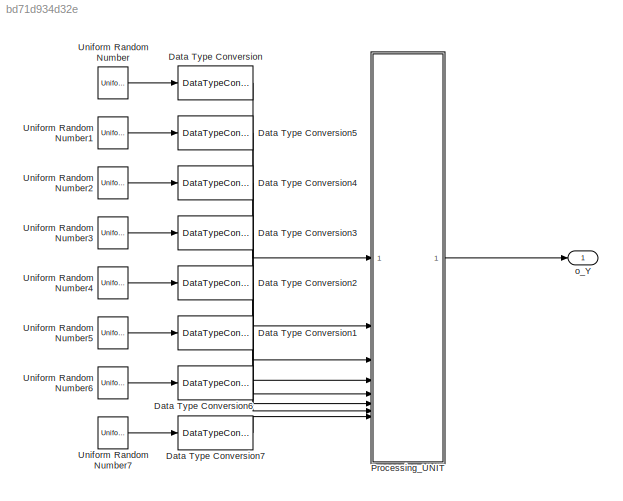
MODEL slx_bd71d934d32e
KIND model
CONFIG AbsTol = auto
CONFIG EnableMultiTasking = off
CONFIG FixedStep = auto
CONFIG MaxStep = auto
CONFIG MinStep = auto
CONFIG RelTol = 1e-3
CONFIG SampleTimeConstraint = Unconstrained
CONFIG SolverName = VariableStepAuto
CONFIG StartTime = 0.0
CONFIG StopTime = 10
BLOCK [DataTypeConversion] Data Type Conversion
  OutDataTypeStr = int8
  RndMeth = Floor
  SaturateOnIntegerOverflow = off
BLOCK [DataTypeConversion] Data Type Conversion1
  OutDataTypeStr = int8
  RndMeth = Floor
  SaturateOnIntegerOverflow = off
BLOCK [DataTypeConversion] Data Type Conversion2
  OutDataTypeStr = int8
  RndMeth = Floor
  SaturateOnIntegerOverflow = off
BLOCK [DataTypeConversion] Data Type Conversion3
  OutDataTypeStr = int8
  RndMeth = Floor
  SaturateOnIntegerOverflow = off
BLOCK [DataTypeConversion] Data Type Conversion4
  OutDataTypeStr = int8
  RndMeth = Floor
  SaturateOnIntegerOverflow = off
BLOCK [DataTypeConversion] Data Type Conversion5
  OutDataTypeStr = int8
  RndMeth = Floor
  SaturateOnIntegerOverflow = off
BLOCK [DataTypeConversion] Data Type Conversion6
  OutDataTypeStr = int8
  RndMeth = Floor
  SaturateOnIntegerOverflow = off
BLOCK [DataTypeConversion] Data Type Conversion7
  OutDataTypeStr = int8
  RndMeth = Floor
  SaturateOnIntegerOverflow = off
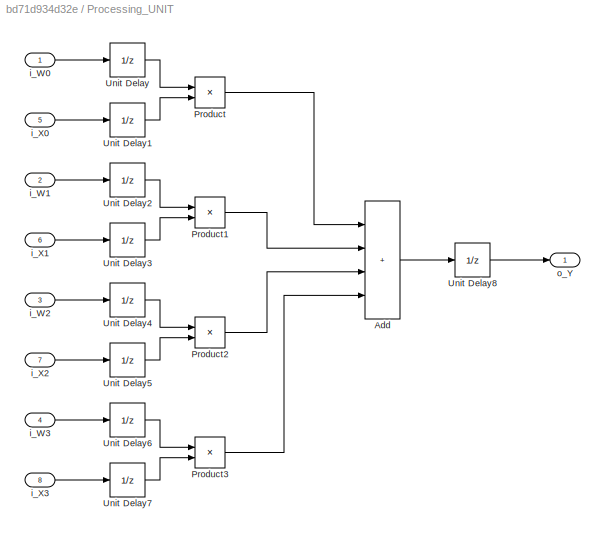
BLOCK [SubSystem] Processing_UNIT
BLOCK [Sum] Processing_UNIT/Add
  IconShape = rectangular
  Inputs = ++++
  OutDataTypeStr = int16
BLOCK [Product] Processing_UNIT/Product
BLOCK [Product] Processing_UNIT/Product1
BLOCK [Product] Processing_UNIT/Product2
BLOCK [Product] Processing_UNIT/Product3
BLOCK [UnitDelay] Processing_UNIT/Unit Delay
  HasFrameUpgradeWarning = on
  SampleTime = -1
BLOCK [UnitDelay] Processing_UNIT/Unit Delay1
  HasFrameUpgradeWarning = on
  SampleTime = -1
BLOCK [UnitDelay] Processing_UNIT/Unit Delay2
  HasFrameUpgradeWarning = on
  SampleTime = -1
BLOCK [UnitDelay] Processing_UNIT/Unit Delay3
  HasFrameUpgradeWarning = on
  SampleTime = -1
BLOCK [UnitDelay] Processing_UNIT/Unit Delay4
  HasFrameUpgradeWarning = on
  SampleTime = -1
BLOCK [UnitDelay] Processing_UNIT/Unit Delay5
  HasFrameUpgradeWarning = on
  SampleTime = -1
BLOCK [UnitDelay] Processing_UNIT/Unit Delay6
  HasFrameUpgradeWarning = on
  SampleTime = -1
BLOCK [UnitDelay] Processing_UNIT/Unit Delay7
  HasFrameUpgradeWarning = on
  SampleTime = -1
BLOCK [UnitDelay] Processing_UNIT/Unit Delay8
  HasFrameUpgradeWarning = on
  SampleTime = -1
BLOCK [Inport] Processing_UNIT/i_W0
BLOCK [Inport] Processing_UNIT/i_W1
  Port = 2
BLOCK [Inport] Processing_UNIT/i_W2
  Port = 3
BLOCK [Inport] Processing_UNIT/i_W3
  Port = 4
BLOCK [Inport] Processing_UNIT/i_X0
  Port = 5
BLOCK [Inport] Processing_UNIT/i_X1
  Port = 6
BLOCK [Inport] Processing_UNIT/i_X2
  Port = 7
BLOCK [Inport] Processing_UNIT/i_X3
  Port = 8
BLOCK [Outport] Processing_UNIT/o_Y
BLOCK [UniformRandomNumber] Uniform Random Number
  Maximum = 2^8-1
  Minimum = 0
  SampleTime = 1
  Seed = 8
BLOCK [UniformRandomNumber] Uniform Random Number1
  Maximum = 2^8-1
  Minimum = 0
  SampleTime = 1
  Seed = 9
BLOCK [UniformRandomNumber] Uniform Random Number2
  Maximum = 2^8-1
  Minimum = 0
  SampleTime = 1
  Seed = 10
BLOCK [UniformRandomNumber] Uniform Random Number3
  Maximum = 2^8-1
  Minimum = 0
  SampleTime = 1
  Seed = 11
BLOCK [UniformRandomNumber] Uniform Random Number4
  Maximum = 2^8-1
  Minimum = 0
  SampleTime = 1
  Seed = 12
BLOCK [UniformRandomNumber] Uniform Random Number5
  Maximum = 2^8-1
  Minimum = 0
  SampleTime = 1
  Seed = 13
BLOCK [UniformRandomNumber] Uniform Random Number6
  Maximum = 2^8-1
  Minimum = 0
  SampleTime = 1
  Seed = 14
BLOCK [UniformRandomNumber] Uniform Random Number7
  Maximum = 2^8-1
  Minimum = 0
  SampleTime = 1
  Seed = 15
BLOCK [Outport] o_Y
LINE Data Type Conversion1:1 -> Processing_UNIT:6
LINE Data Type Conversion2:1 -> Processing_UNIT:5
LINE Data Type Conversion3:1 -> Processing_UNIT:4
LINE Data Type Conversion4:1 -> Processing_UNIT:3
LINE Data Type Conversion5:1 -> Processing_UNIT:2
LINE Data Type Conversion6:1 -> Processing_UNIT:7
LINE Data Type Conversion7:1 -> Processing_UNIT:8
LINE Data Type Conversion:1 -> Processing_UNIT:1
LINE Processing_UNIT/Add:1 -> Processing_UNIT/Unit Delay8:1
LINE Processing_UNIT/Product1:1 -> Processing_UNIT/Add:2
LINE Processing_UNIT/Product2:1 -> Processing_UNIT/Add:3
LINE Processing_UNIT/Product3:1 -> Processing_UNIT/Add:4
LINE Processing_UNIT/Product:1 -> Processing_UNIT/Add:1
LINE Processing_UNIT/Unit Delay1:1 -> Processing_UNIT/Product:2
LINE Processing_UNIT/Unit Delay2:1 -> Processing_UNIT/Product1:1
LINE Processing_UNIT/Unit Delay3:1 -> Processing_UNIT/Product1:2
LINE Processing_UNIT/Unit Delay4:1 -> Processing_UNIT/Product2:1
LINE Processing_UNIT/Unit Delay5:1 -> Processing_UNIT/Product2:2
LINE Processing_UNIT/Unit Delay6:1 -> Processing_UNIT/Product3:1
LINE Processing_UNIT/Unit Delay7:1 -> Processing_UNIT/Product3:2
LINE Processing_UNIT/Unit Delay8:1 -> Processing_UNIT/o_Y:1
LINE Processing_UNIT/Unit Delay:1 -> Processing_UNIT/Product:1
LINE Processing_UNIT/i_W0:1 -> Processing_UNIT/Unit Delay:1
LINE Processing_UNIT/i_W1:1 -> Processing_UNIT/Unit Delay2:1
LINE Processing_UNIT/i_W2:1 -> Processing_UNIT/Unit Delay4:1
LINE Processing_UNIT/i_W3:1 -> Processing_UNIT/Unit Delay6:1
LINE Processing_UNIT/i_X0:1 -> Processing_UNIT/Unit Delay1:1
LINE Processing_UNIT/i_X1:1 -> Processing_UNIT/Unit Delay3:1
LINE Processing_UNIT/i_X2:1 -> Processing_UNIT/Unit Delay5:1
LINE Processing_UNIT/i_X3:1 -> Processing_UNIT/Unit Delay7:1
LINE Processing_UNIT:1 -> o_Y:1
LINE Uniform Random Number1:1 -> Data Type Conversion5:1
LINE Uniform Random Number2:1 -> Data Type Conversion4:1
LINE Uniform Random Number3:1 -> Data Type Conversion3:1
LINE Uniform Random Number4:1 -> Data Type Conversion2:1
LINE Uniform Random Number5:1 -> Data Type Conversion1:1
LINE Uniform Random Number6:1 -> Data Type Conversion6:1
LINE Uniform Random Number7:1 -> Data Type Conversion7:1
LINE Uniform Random Number:1 -> Data Type Conversion:1
